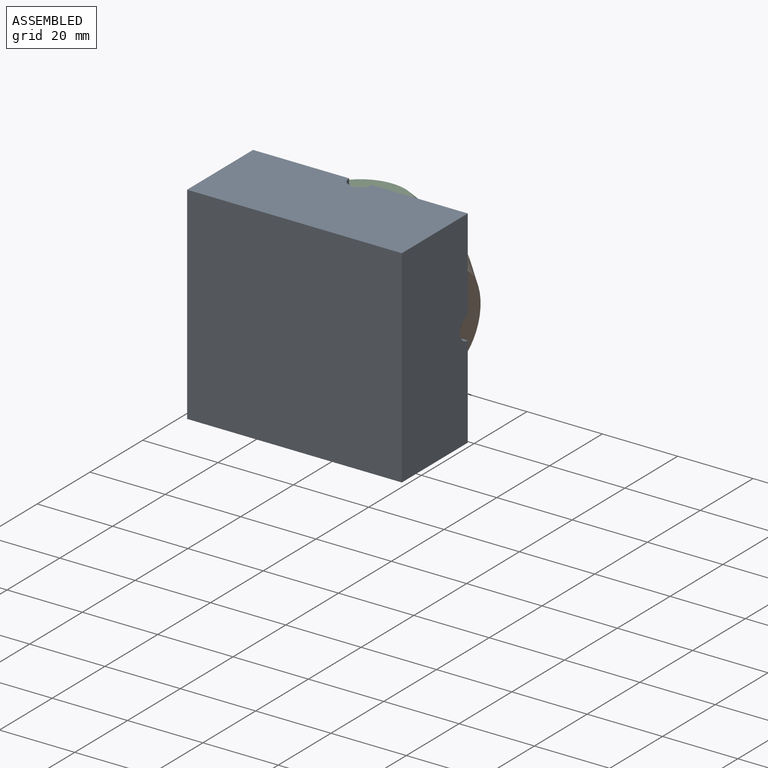
[diagram: assembled view]
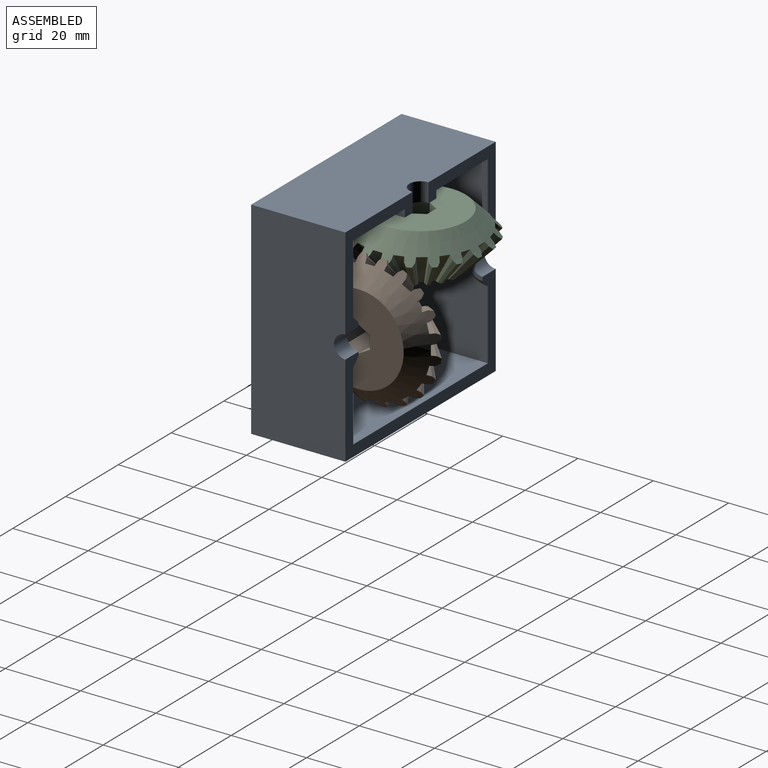
[diagram: assembled view, second angle]
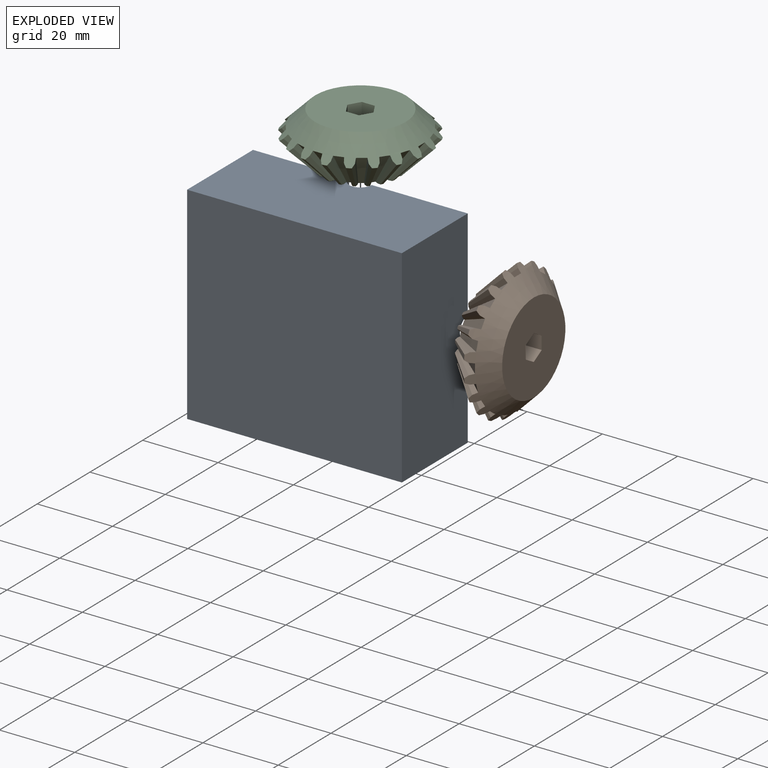
[diagram: exploded view]
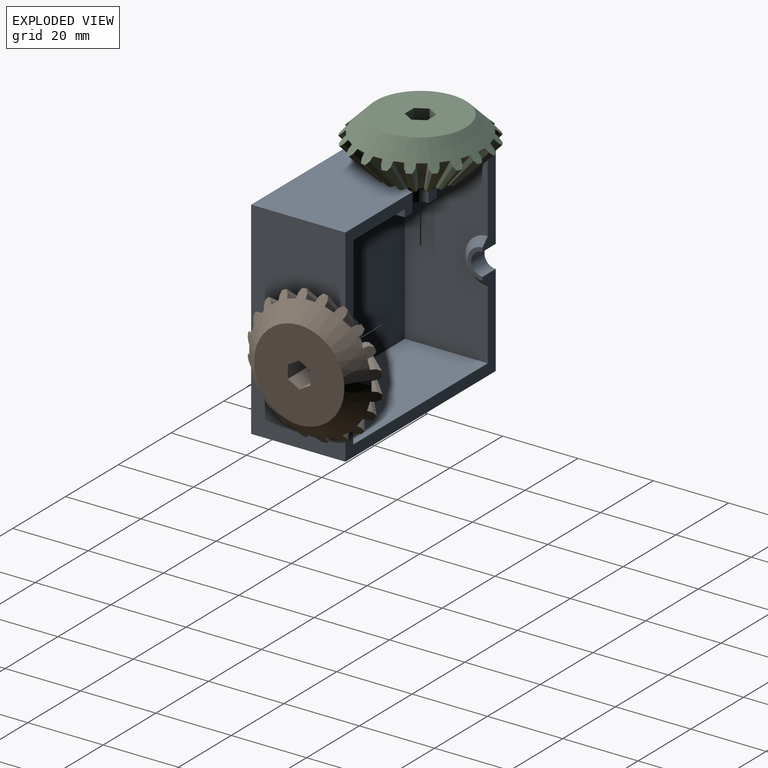
[diagram: exploded view, second angle]
ASSEMBLY  parts=3 mates=4
PART A: 24 faces, bbox 57x25x55 mm
  f0: plane 22x19.5mm, normal (0,0,-1), area 429mm2, adj f2,f3,f5,f21
  f1: plane 22x19.5mm, normal (0,0,-1), area 429mm2, adj f2,f4,f12,f22
  f2: plane 51x49mm, normal (0,1,0), area 2475mm2, adj f0,f1,f3,f12,f13,f21,f22,f23
  f3: plane 49x22mm, normal (1,0,0), area 1021.5mm2, adj f0,f2,f5,f8,f13,f18
  f4: plane 25.5x24.5mm, normal (0,1,0), area 151mm2, adj f1,f6,f9,f12,f15,f16,f19,f20
  f5: plane 25.5x24.5mm, normal (0,1,0), area 151mm2, adj f0,f3,f6,f7,f14,f16,f17,f18
  f6: plane 57x25mm, normal (0,0,1), area 1410.9mm2, adj f4,f5,f7,f9,f11,f16
  f7: plane 55x25mm, normal (-1,0,0), area 1360.9mm2, adj f5,f6,f8,f10,f11,f14
  f8: plane 57x24.5mm, normal (0,1,0), area 308mm2, adj f3,f7,f9,f10,f12,f13,f14,f15
  f9: plane 55x25mm, normal (1,0,0), area 1360.9mm2, adj f4,f6,f8,f10,f11,f15
  f10: plane 57x25mm, normal (0,0,-1), area 1425mm2, adj f7,f8,f9,f11
  f11: plane 57x55mm, normal (0,-1,0), area 3135mm2, adj f6,f7,f9,f10
  f12: plane 49x22mm, normal (-1,0,0), area 1021.5mm2, adj f1,f2,f4,f8,f13,f20
  f13: plane 51x22mm, normal (0,0,1), area 1122mm2, adj f2,f3,f8,f12
  f14: cylinder r=3mm len=6mm, axis (-1,0,0), area 47.1mm2, adj f5,f7,f8,f17
  f15: cylinder r=3mm len=6mm, axis (-1,0,0), area 47.1mm2, adj f4,f8,f9,f19
  f16: cylinder r=3mm len=6mm, axis (0,0,1), area 47.1mm2, adj f4,f5,f6,f23
  f17: plane 8x4mm, normal (1,0,0), area 11mm2, adj f5,f8,f14,f18
  f18: cone r=4mm half-angle=45deg, axis (-1,0,0), area 44.4mm2, adj f3,f5,f8,f17
  f19: plane 8x4mm, normal (-1,0,0), area 11mm2, adj f4,f8,f15,f20
  f20: cone r=6mm half-angle=45deg, axis (1,0,0), area 44.4mm2, adj f4,f8,f12,f19
  f21: plane 22x2mm, normal (-1,0,0), area 44mm2, adj f0,f2,f5,f23
  f22: plane 22x2mm, normal (1,0,0), area 44mm2, adj f1,f2,f4,f23
  f23: plane 22x12mm, normal (0,0,-1), area 249.9mm2, adj f2,f4,f5,f16,f21,f22
PART B: 131 faces, bbox 36x36x14 mm
  f0: plane 24x24mm, normal (0,0,-1), area 421.2mm2, adj f21,f125,f126,f127,f128,f129,f130
  f1: cone r=18mm half-angle=45deg, axis (0,0,-1), area 11.3mm2, adj f21,f24,f118,f122
  f2: cone r=18mm half-angle=45deg, axis (0,0,-1), area 11.3mm2, adj f21,f113,f119,f122
  f3: cone r=18mm half-angle=45deg, axis (0,0,-1), area 11.3mm2, adj f21,f108,f114,f122
  f4: cone r=18mm half-angle=45deg, axis (0,0,-1), area 11.3mm2, adj f21,f103,f109,f122
  f5: cone r=18mm half-angle=45deg, axis (0,0,-1), area 11.3mm2, adj f21,f98,f104,f122
  f6: cone r=18mm half-angle=45deg, axis (0,0,-1), area 11.3mm2, adj f21,f93,f99,f122
  f7: cone r=18mm half-angle=45deg, axis (0,0,-1), area 11.3mm2, adj f21,f88,f94,f122
  f8: cone r=18mm half-angle=45deg, axis (0,0,-1), area 11.3mm2, adj f21,f83,f89,f122
  f9: cone r=18mm half-angle=45deg, axis (0,0,-1), area 11.3mm2, adj f21,f78,f84,f122
  f10: cone r=18mm half-angle=45deg, axis (0,0,-1), area 11.3mm2, adj f21,f73,f79,f122
  f11: cone r=18mm half-angle=45deg, axis (0,0,-1), area 11.3mm2, adj f21,f68,f74,f122
  f12: cone r=18mm half-angle=45deg, axis (0,0,-1), area 11.3mm2, adj f21,f63,f69,f122
  f13: cone r=18mm half-angle=45deg, axis (0,0,-1), area 11.3mm2, adj f21,f58,f64,f122
  f14: cone r=18mm half-angle=45deg, axis (0,0,-1), area 11.3mm2, adj f21,f53,f59,f122
  f15: cone r=18mm half-angle=45deg, axis (0,0,-1), area 11.3mm2, adj f21,f48,f54,f122
  f16: cone r=18mm half-angle=45deg, axis (0,0,-1), area 11.3mm2, adj f21,f43,f49,f122
  f17: cone r=18mm half-angle=45deg, axis (0,0,-1), area 11.3mm2, adj f21,f38,f44,f122
  f18: cone r=18mm half-angle=45deg, axis (0,0,-1), area 11.3mm2, adj f21,f33,f39,f122
  f19: cone r=18mm half-angle=45deg, axis (0,0,-1), area 11.3mm2, adj f21,f28,f34,f122
  f20: cone r=18mm half-angle=45deg, axis (0,0,-1), area 11.3mm2, adj f21,f23,f29,f122
  f21: cone r=12mm half-angle=45deg, axis (0,0,1), area 643.4mm2, adj f0,f1,f2,f3,f4,f5,f6,f7
  f22: plane 9.75x8.95mm, normal (0.17,0.98,0.08), area 12.8mm2, adj f21,f23,f26,f122
  f23: plane 8.79x8.74mm, normal (0.44,0.83,0.34), area 11.3mm2, adj f20,f21,f22,f122
  f24: plane 8.79x8.74mm, normal (0.44,-0.83,0.34), area 11.3mm2, adj f1,f21,f25,f122
  f25: plane 9.75x8.95mm, normal (0.17,-0.98,0.08), area 12.8mm2, adj f21,f24,f26,f122
  f26: plane 9.79x8.04mm, normal (0.77,0,0.63), area 23.8mm2, adj f21,f22,f25,f122
  f27: plane 9.75x8.25mm, normal (0.46,0.88,0.08), area 12.8mm2, adj f21,f28,f31,f122
  f28: plane 8.79x7.89mm, normal (0.68,0.65,0.34), area 11.3mm2, adj f19,f21,f27,f122
  f29: plane 8.79x8.74mm, normal (0.16,-0.93,0.34), area 11.3mm2, adj f20,f21,f30,f122
  f30: plane 9.75x8.78mm, normal (-0.14,-0.99,0.08), area 12.8mm2, adj f21,f29,f31,f122
  f31: plane 9.77x8.19mm, normal (0.74,-0.24,0.63), area 23.8mm2, adj f21,f27,f30,f122
  f32: plane 9.75x6.74mm, normal (0.71,0.7,0.08), area 12.8mm2, adj f21,f33,f36,f122
  f33: plane 8.79x6.27mm, normal (0.85,0.41,0.34), area 11.3mm2, adj f18,f21,f32,f122
  f34: plane 8.79x7.89mm, normal (-0.13,-0.93,0.34), area 11.3mm2, adj f19,f21,f35,f122
  f35: plane 9.75x7.75mm, normal (-0.44,-0.89,0.08), area 12.8mm2, adj f21,f34,f36,f122
  f36: plane 9.77x7.58mm, normal (0.63,-0.45,0.63), area 23.8mm2, adj f21,f32,f35,f122
  f37: plane 9.75x7.75mm, normal (0.89,0.44,0.08), area 12.8mm2, adj f21,f38,f41,f122
  f38: plane 8.79x7.89mm, normal (0.93,0.13,0.34), area 11.3mm2, adj f17,f21,f37,f122
  f39: plane 8.79x6.27mm, normal (-0.41,-0.85,0.34), area 11.3mm2, adj f18,f21,f40,f122
  f40: plane 9.75x6.74mm, normal (-0.7,-0.71,0.08), area 12.8mm2, adj f21,f39,f41,f122
  f41: plane 9.77x7.58mm, normal (0.45,-0.63,0.63), area 23.8mm2, adj f21,f37,f40,f122
  f42: plane 9.75x8.78mm, normal (0.99,0.14,0.08), area 12.8mm2, adj f21,f43,f46,f122
  f43: plane 8.79x8.74mm, normal (0.93,-0.16,0.34), area 11.3mm2, adj f16,f21,f42,f122
  f44: plane 8.79x7.89mm, normal (-0.65,-0.68,0.34), area 11.3mm2, adj f17,f21,f45,f122
  f45: plane 9.75x8.25mm, normal (-0.88,-0.46,0.08), area 12.8mm2, adj f21,f44,f46,f122
  f46: plane 9.77x8.19mm, normal (0.24,-0.74,0.63), area 23.8mm2, adj f21,f42,f45,f122
  f47: plane 9.75x8.95mm, normal (0.98,-0.17,0.08), area 12.8mm2, adj f21,f48,f51,f122
  f48: plane 8.79x8.74mm, normal (0.83,-0.44,0.34), area 11.3mm2, adj f15,f21,f47,f122
  f49: plane 8.79x8.74mm, normal (-0.83,-0.44,0.34), area 11.3mm2, adj f16,f21,f50,f122
  f50: plane 9.75x8.95mm, normal (-0.98,-0.17,0.08), area 12.8mm2, adj f21,f49,f51,f122
  f51: plane 9.77x8.02mm, normal (0,-0.77,0.63), area 23.8mm2, adj f21,f47,f50,f122
  f52: plane 9.75x8.25mm, normal (0.88,-0.46,0.08), area 12.8mm2, adj f21,f53,f56,f122
  f53: plane 8.79x7.89mm, normal (0.65,-0.68,0.34), area 11.3mm2, adj f14,f21,f52,f122
  f54: plane 8.79x8.74mm, normal (-0.93,-0.16,0.34), area 11.3mm2, adj f15,f21,f55,f122
  f55: plane 9.75x8.78mm, normal (-0.99,0.14,0.08), area 12.8mm2, adj f21,f54,f56,f122
  f56: plane 9.77x8.19mm, normal (-0.24,-0.74,0.63), area 23.8mm2, adj f21,f52,f55,f122
  f57: plane 9.75x6.74mm, normal (0.7,-0.71,0.08), area 12.8mm2, adj f21,f58,f61,f122
  f58: plane 8.79x6.27mm, normal (0.41,-0.85,0.34), area 11.3mm2, adj f13,f21,f57,f122
  f59: plane 8.79x7.89mm, normal (-0.93,0.13,0.34), area 11.3mm2, adj f14,f21,f60,f122
  f60: plane 9.75x7.75mm, normal (-0.89,0.44,0.08), area 12.8mm2, adj f21,f59,f61,f122
  f61: plane 9.77x7.58mm, normal (-0.45,-0.63,0.63), area 23.8mm2, adj f21,f57,f60,f122
  f62: plane 9.75x7.75mm, normal (0.44,-0.89,0.08), area 12.8mm2, adj f21,f63,f66,f122
  f63: plane 8.79x7.89mm, normal (0.13,-0.93,0.34), area 11.3mm2, adj f12,f21,f62,f122
  f64: plane 8.79x6.27mm, normal (-0.85,0.41,0.34), area 11.3mm2, adj f13,f21,f65,f122
  f65: plane 9.75x6.74mm, normal (-0.71,0.7,0.08), area 12.8mm2, adj f21,f64,f66,f122
  f66: plane 9.77x7.58mm, normal (-0.63,-0.45,0.63), area 23.8mm2, adj f21,f62,f65,f122
  f67: plane 9.75x8.78mm, normal (0.14,-0.99,0.08), area 12.8mm2, adj f21,f68,f71,f122
  f68: plane 8.79x8.74mm, normal (-0.16,-0.93,0.34), area 11.3mm2, adj f11,f21,f67,f122
  f69: plane 8.79x7.89mm, normal (-0.68,0.65,0.34), area 11.3mm2, adj f12,f21,f70,f122
  f70: plane 9.75x8.25mm, normal (-0.46,0.88,0.08), area 12.8mm2, adj f21,f69,f71,f122
  f71: plane 9.77x8.19mm, normal (-0.74,-0.24,0.63), area 23.8mm2, adj f21,f67,f70,f122
  f72: plane 9.75x8.95mm, normal (-0.17,-0.98,0.08), area 12.8mm2, adj f21,f73,f76,f122
  f73: plane 8.79x8.74mm, normal (-0.44,-0.83,0.34), area 11.3mm2, adj f10,f21,f72,f122
  f74: plane 8.79x8.74mm, normal (-0.44,0.83,0.34), area 11.3mm2, adj f11,f21,f75,f122
  f75: plane 9.75x8.95mm, normal (-0.17,0.98,0.08), area 12.8mm2, adj f21,f74,f76,f122
  f76: plane 9.77x8.02mm, normal (-0.77,0,0.63), area 23.8mm2, adj f21,f72,f75,f122
  f77: plane 9.75x8.25mm, normal (-0.46,-0.88,0.08), area 12.8mm2, adj f21,f78,f81,f122
  f78: plane 8.79x7.89mm, normal (-0.68,-0.65,0.34), area 11.3mm2, adj f9,f21,f77,f122
  f79: plane 8.79x8.74mm, normal (-0.16,0.93,0.34), area 11.3mm2, adj f10,f21,f80,f122
  f80: plane 9.75x8.78mm, normal (0.14,0.99,0.08), area 12.8mm2, adj f21,f79,f81,f122
  f81: plane 9.77x8.19mm, normal (-0.74,0.24,0.63), area 23.8mm2, adj f21,f77,f80,f122
  f82: plane 9.75x6.74mm, normal (-0.71,-0.7,0.08), area 12.8mm2, adj f21,f83,f86,f122
  f83: plane 8.79x6.27mm, normal (-0.85,-0.41,0.34), area 11.3mm2, adj f8,f21,f82,f122
  f84: plane 8.79x7.89mm, normal (0.13,0.93,0.34), area 11.3mm2, adj f9,f21,f85,f122
  f85: plane 9.75x7.75mm, normal (0.44,0.89,0.08), area 12.8mm2, adj f21,f84,f86,f122
  f86: plane 9.77x7.58mm, normal (-0.63,0.45,0.63), area 23.8mm2, adj f21,f82,f85,f122
  f87: plane 9.75x7.75mm, normal (-0.89,-0.44,0.08), area 12.8mm2, adj f21,f88,f91,f122
  f88: plane 8.79x7.89mm, normal (-0.93,-0.13,0.34), area 11.3mm2, adj f7,f21,f87,f122
  f89: plane 8.79x6.27mm, normal (0.41,0.85,0.34), area 11.3mm2, adj f8,f21,f90,f122
  f90: plane 9.75x6.74mm, normal (0.7,0.71,0.08), area 12.8mm2, adj f21,f89,f91,f122
  f91: plane 9.77x7.58mm, normal (-0.45,0.63,0.63), area 23.8mm2, adj f21,f87,f90,f122
  f92: plane 9.75x8.78mm, normal (-0.99,-0.14,0.08), area 12.8mm2, adj f21,f93,f96,f122
  f93: plane 8.79x8.74mm, normal (-0.93,0.16,0.34), area 11.3mm2, adj f6,f21,f92,f122
  f94: plane 8.79x7.89mm, normal (0.65,0.68,0.34), area 11.3mm2, adj f7,f21,f95,f122
  f95: plane 9.75x8.25mm, normal (0.88,0.46,0.08), area 12.8mm2, adj f21,f94,f96,f122
  f96: plane 9.77x8.19mm, normal (-0.24,0.74,0.63), area 23.8mm2, adj f21,f92,f95,f122
  f97: plane 9.75x8.95mm, normal (-0.98,0.17,0.08), area 12.8mm2, adj f21,f98,f101,f122
  f98: plane 8.79x8.74mm, normal (-0.83,0.44,0.34), area 11.3mm2, adj f5,f21,f97,f122
  f99: plane 8.79x8.74mm, normal (0.83,0.44,0.34), area 11.3mm2, adj f6,f21,f100,f122
  f100: plane 9.75x8.95mm, normal (0.98,0.17,0.08), area 12.8mm2, adj f21,f99,f101,f122
  f101: plane 9.77x8.02mm, normal (0,0.77,0.63), area 23.8mm2, adj f21,f97,f100,f122
  f102: plane 9.75x8.25mm, normal (-0.88,0.46,0.08), area 12.8mm2, adj f21,f103,f106,f122
  f103: plane 8.79x7.89mm, normal (-0.65,0.68,0.34), area 11.3mm2, adj f4,f21,f102,f122
  f104: plane 8.79x8.74mm, normal (0.93,0.16,0.34), area 11.3mm2, adj f5,f21,f105,f122
  f105: plane 9.75x8.78mm, normal (0.99,-0.14,0.08), area 12.8mm2, adj f21,f104,f106,f122
  f106: plane 9.77x8.19mm, normal (0.24,0.74,0.63), area 23.8mm2, adj f21,f102,f105,f122
  f107: plane 9.75x6.74mm, normal (-0.7,0.71,0.08), area 12.8mm2, adj f21,f108,f111,f122
  f108: plane 8.79x6.27mm, normal (-0.41,0.85,0.34), area 11.3mm2, adj f3,f21,f107,f122
  f109: plane 8.79x7.89mm, normal (0.93,-0.13,0.34), area 11.3mm2, adj f4,f21,f110,f122
  f110: plane 9.75x7.75mm, normal (0.89,-0.44,0.08), area 12.8mm2, adj f21,f109,f111,f122
  f111: plane 9.77x7.58mm, normal (0.45,0.63,0.63), area 23.8mm2, adj f21,f107,f110,f122
  f112: plane 9.75x7.75mm, normal (-0.44,0.89,0.08), area 12.8mm2, adj f21,f113,f116,f122
  f113: plane 8.79x7.89mm, normal (-0.13,0.93,0.34), area 11.3mm2, adj f2,f21,f112,f122
  f114: plane 8.79x6.27mm, normal (0.85,-0.41,0.34), area 11.3mm2, adj f3,f21,f115,f122
  f115: plane 9.75x6.74mm, normal (0.71,-0.7,0.08), area 12.8mm2, adj f21,f114,f116,f122
  f116: plane 9.77x7.58mm, normal (0.63,0.45,0.63), area 23.8mm2, adj f21,f112,f115,f122
  f117: plane 9.75x8.78mm, normal (-0.14,0.99,0.08), area 12.8mm2, adj f21,f118,f121,f122
  f118: plane 8.79x8.74mm, normal (0.16,0.93,0.34), area 11.3mm2, adj f1,f21,f117,f122
  f119: plane 8.79x7.89mm, normal (0.68,-0.65,0.34), area 11.3mm2, adj f2,f21,f120,f122
  f120: plane 9.75x8.25mm, normal (0.46,-0.88,0.08), area 12.8mm2, adj f21,f119,f121,f122
  f121: plane 9.77x8.19mm, normal (0.74,0.24,0.63), area 23.8mm2, adj f21,f117,f120,f122
  f122: plane 19.85x19.85mm, normal (0,0,1), area 143.3mm2, adj f1,f2,f3,f4,f5,f6,f7,f8
  f123: plane 10x10mm, normal (0,0,1), area 47.4mm2, adj f124,f125,f126,f127,f128,f129,f130
  f124: cone r=5mm half-angle=25deg, axis (0,0,1), area 75.8mm2, adj f122,f123
  f125: plane 12x3mm, normal (0.87,-0.5,0), area 41.6mm2, adj f0,f123,f126,f130
  f126: plane 12x3mm, normal (0.87,0.5,0), area 41.6mm2, adj f0,f123,f125,f127
  f127: plane 12x3.46mm, normal (0,1,0), area 41.6mm2, adj f0,f123,f126,f128
  f128: plane 12x3mm, normal (-0.87,0.5,0), area 41.6mm2, adj f0,f123,f127,f129
  f129: plane 12x3mm, normal (-0.87,-0.5,0), area 41.6mm2, adj f0,f123,f128,f130
  f130: plane 12x3.46mm, normal (0,-1,0), area 41.6mm2, adj f0,f123,f125,f129
PART C: same geometry as B
PLACE A t=(16,25.45,-26.56)mm
PLACE B rot(axis=(0.71,0,-0.71),180deg) t=(39.5,25.45,-26.56)mm
PLACE C rot(axis=(1,0,0),180deg) t=(16,25.45,-4.06)mm
MATE planar C.f0 <-> A.f23  axis (0,0,1) through (19.46,25.45,-4.06)mm
MATE planar B.f0 <-> A.f19  axis (1,0,0) through (39.5,28.45,-26.56)mm
MATE cylindrical C.f1 <-> A.f16  axis (0,0,1) through (16,25.45,-4.06)mm
MATE cylindrical B.f1 <-> A.f14  axis (1,0,0) through (39.5,25.45,-26.56)mm
